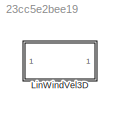
MODEL slx_23cc5e2bee19
KIND library
CONFIG AbsTol = auto
CONFIG EnableMultiTasking = off
CONFIG FixedStep = auto
CONFIG MaxStep = auto
CONFIG MinStep = auto
CONFIG RelTol = 1e-3
CONFIG SampleTimeConstraint = Unconstrained
CONFIG Solver = VariableStepAuto
CONFIG SolverName = VariableStepAuto
CONFIG StartTime = 0.0
CONFIG StopTime = 10.0
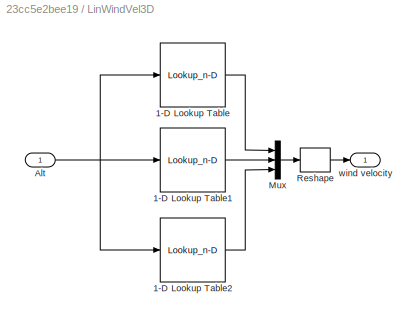
BLOCK [SubSystem] LinWindVel3D
  Ports = [1, 1]
  RequestExecContextInheritance = off
BLOCK [Lookup_n-D] LinWindVel3D/1-D Lookup Table
  BreakpointsForDimension1 = [0 5000]/3.2808
  InternalRulePriority = Speed
  NumberOfTableDimensions = 1
  Ports = [1, 1]
  RndMeth = Simplest
  Table = Env.windVecX.Value
BLOCK [Lookup_n-D] LinWindVel3D/1-D Lookup Table1
  BreakpointsForDimension1 = [0 5000]/3.2808
  InternalRulePriority = Speed
  NumberOfTableDimensions = 1
  Ports = [1, 1]
  RndMeth = Simplest
  Table = Env.windVecY.Value
BLOCK [Lookup_n-D] LinWindVel3D/1-D Lookup Table2
  BreakpointsForDimension1 = [0 5000]/3.2808
  InternalRulePriority = Speed
  NumberOfTableDimensions = 1
  Ports = [1, 1]
  RndMeth = Simplest
  Table = Env.windVecZ.Value
BLOCK [Inport] LinWindVel3D/Alt
BLOCK [Mux] LinWindVel3D/Mux
  DisplayOption = bar
  Inputs = 3
  Ports = [3, 1]
BLOCK [Reshape] LinWindVel3D/Reshape
  OutputDimensionality = Column vector (2-D)
  Ports = [1, 1]
BLOCK [Outport] LinWindVel3D/wind velocity
  VectorParamsAs1DForOutWhenUnconnected = off
LINE LinWindVel3D/1-D Lookup Table1:1 -> LinWindVel3D/Mux:2
LINE LinWindVel3D/1-D Lookup Table2:1 -> LinWindVel3D/Mux:3
LINE LinWindVel3D/1-D Lookup Table:1 -> LinWindVel3D/Mux:1
NET LinWindVel3D/Alt:1 -> LinWindVel3D/1-D Lookup Table1:1, LinWindVel3D/1-D Lookup Table2:1, LinWindVel3D/1-D Lookup Table:1
LINE LinWindVel3D/Mux:1 -> LinWindVel3D/Reshape:1
LINE LinWindVel3D/Reshape:1 -> LinWindVel3D/wind velocity:1
note: NET lines group one-source signal fan-out (src -> all destinations, sorted); 1:1 wires keep LINE
